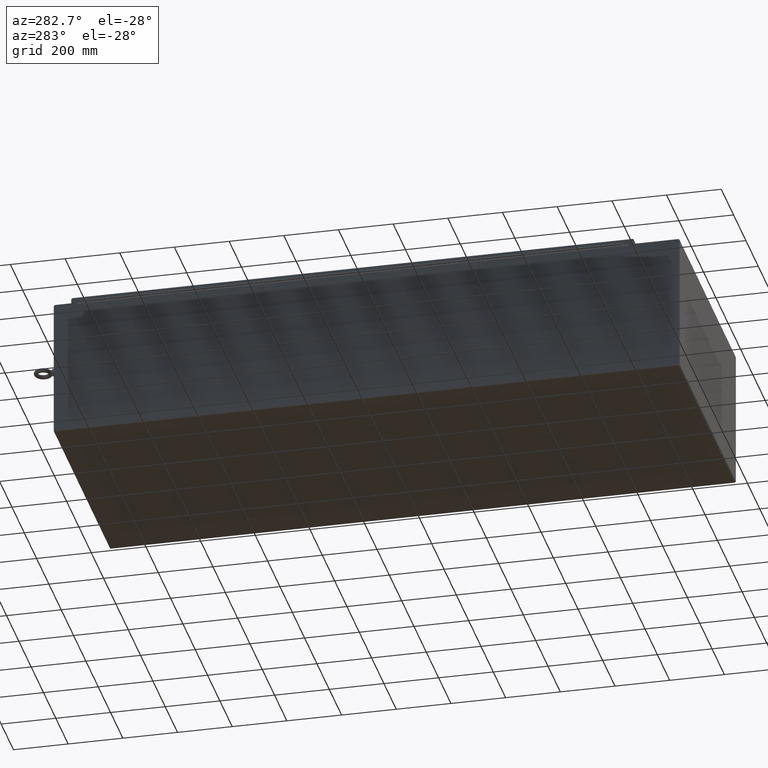
[diagram: clean part render]
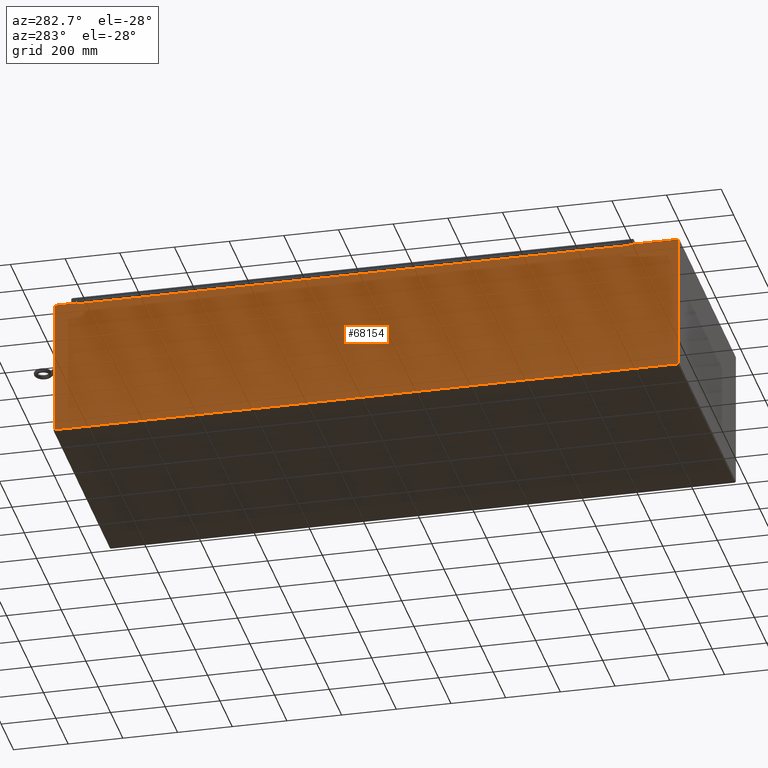
[diagram: same view with one face highlighted and labeled with its STEP entity id]
A machine part, auxiliary view. The second image highlights one B-rep face of the part: STEP entity #68154.
In plain terms, the highlighted planar face has unit normal (1, -0, 0).
Its self-contained STEP definition (entity closure, byte-faithful):
#9211=PLANE('',#71991);
#10396=FACE_OUTER_BOUND('',#13370,.T.);
#13370=EDGE_LOOP('',(#50585,#50586,#50587,#50588,#50589,#50590,#50591,#50592,
#50593,#50594,#50595,#50596));
#20052=LINE('',#96365,#25299);
#20058=LINE('',#96383,#25305);
#20061=LINE('',#96390,#25308);
#20065=LINE('',#96397,#25312);
#20067=LINE('',#96401,#25314);
#20068=LINE('',#96403,#25315);
#20069=LINE('',#96405,#25316);
#20070=LINE('',#96407,#25317);
#20071=LINE('',#96409,#25318);
#20072=LINE('',#96411,#25319);
#20073=LINE('',#96413,#25320);
#20074=LINE('',#96414,#25321);
#25299=VECTOR('',#78387,0.393700787401575);
#25305=VECTOR('',#78411,0.393700787401575);
#25308=VECTOR('',#78416,0.393700787401575);
#25312=VECTOR('',#78422,0.393700787401575);
#25314=VECTOR('',#78426,0.393700787401575);
#25315=VECTOR('',#78427,0.393700787401575);
#25316=VECTOR('',#78428,0.393700787401575);
#25317=VECTOR('',#78429,0.393700787401575);
#25318=VECTOR('',#78430,0.393700787401575);
#25319=VECTOR('',#78431,0.393700787401575);
#25320=VECTOR('',#78432,0.179625000000001);
#25321=VECTOR('',#78433,0.393700787401575);
#30540=VERTEX_POINT('',#96362);
#30541=VERTEX_POINT('',#96364);
#30544=VERTEX_POINT('',#96382);
#30546=VERTEX_POINT('',#96388);
#30547=VERTEX_POINT('',#96389);
#30550=VERTEX_POINT('',#96400);
#30551=VERTEX_POINT('',#96402);
#30552=VERTEX_POINT('',#96404);
#30553=VERTEX_POINT('',#96406);
#30554=VERTEX_POINT('',#96408);
#30555=VERTEX_POINT('',#96410);
#30556=VERTEX_POINT('',#96412);
#39804=EDGE_CURVE('',#30541,#30540,#20052,.T.);
#39813=EDGE_CURVE('',#30544,#30541,#20058,.T.);
#39816=EDGE_CURVE('',#30546,#30547,#20061,.T.);
#39820=EDGE_CURVE('',#30547,#30544,#20065,.T.);
#39822=EDGE_CURVE('',#30540,#30550,#20067,.T.);
#39823=EDGE_CURVE('',#30550,#30551,#20068,.T.);
#39824=EDGE_CURVE('',#30551,#30552,#20069,.T.);
#39825=EDGE_CURVE('',#30553,#30552,#20070,.T.);
#39826=EDGE_CURVE('',#30554,#30553,#20071,.T.);
#39827=EDGE_CURVE('',#30554,#30555,#20072,.T.);
#39828=EDGE_CURVE('',#30556,#30555,#20073,.T.);
#39829=EDGE_CURVE('',#30546,#30556,#20074,.T.);
#50585=ORIENTED_EDGE('',*,*,#39816,.T.);
#50586=ORIENTED_EDGE('',*,*,#39820,.T.);
#50587=ORIENTED_EDGE('',*,*,#39813,.T.);
#50588=ORIENTED_EDGE('',*,*,#39804,.T.);
#50589=ORIENTED_EDGE('',*,*,#39822,.T.);
#50590=ORIENTED_EDGE('',*,*,#39823,.T.);
#50591=ORIENTED_EDGE('',*,*,#39824,.T.);
#50592=ORIENTED_EDGE('',*,*,#39825,.F.);
#50593=ORIENTED_EDGE('',*,*,#39826,.F.);
#50594=ORIENTED_EDGE('',*,*,#39827,.T.);
#50595=ORIENTED_EDGE('',*,*,#39828,.F.);
#50596=ORIENTED_EDGE('',*,*,#39829,.F.);
#68154=ADVANCED_FACE('',(#10396),#9211,.F.);
#71991=AXIS2_PLACEMENT_3D('',#96399,#78424,#78425);
#78387=DIRECTION('',(6.20039750367297E-17,1.,-7.04859803593627E-17));
#78411=DIRECTION('',(-5.41233235300946E-15,0.,1.));
#78416=DIRECTION('',(5.41233235300946E-15,0.,-1.));
#78422=DIRECTION('',(6.20039750367293E-17,1.,0.));
#78424=DIRECTION('center_axis',(1.,-6.20039750367293E-17,5.41233235300946E-15));
#78425=DIRECTION('ref_axis',(5.41233235300946E-15,6.22221013937785E-17,
-1.));
#78426=DIRECTION('',(5.41233235300946E-15,0.,-1.));
#78427=DIRECTION('',(6.20039750367293E-17,1.,0.));
#78428=DIRECTION('',(-5.41233235300946E-15,0.,1.));
#78429=DIRECTION('',(-6.22221013937792E-17,-1.,6.22221013937788E-17));
#78430=DIRECTION('',(-5.39030285815812E-15,3.32800694390114E-31,1.));
#78431=DIRECTION('',(-6.20039750367293E-17,-1.,1.17576712584357E-33));
#78432=DIRECTION('',(5.32907051820075E-15,-6.22221013937792E-17,-1.));
#78433=DIRECTION('',(-6.22221013937792E-17,-1.,6.22221013937788E-17));
#96362=CARTESIAN_POINT('',(-18.0105000000001,41.6875,19.880375));
#96364=CARTESIAN_POINT('',(-18.0105000000001,-37.6875,19.880375));
#96365=CARTESIAN_POINT('',(-18.0105000000001,-18.84375,19.880375));
#96382=CARTESIAN_POINT('',(-18.0105000000001,-37.6875,19.880175));
#96383=CARTESIAN_POINT('',(-18.0105000000001,-37.6875,14.9359551774499));
#96388=CARTESIAN_POINT('',(-18.0105000000001,-37.6877,20.021));
#96389=CARTESIAN_POINT('',(-18.0105000000001,-37.6877,19.880175));
#96390=CARTESIAN_POINT('',(-18.0105000000001,-37.6877,15.0063676774499));
#96397=CARTESIAN_POINT('',(-18.0105000000001,-18.84385,19.880175));
#96399=CARTESIAN_POINT('Origin',(-18.0105000000001,-2.00752701285512E-15,
9.99173535489973));
#96400=CARTESIAN_POINT('',(-18.0105000000001,41.6875,19.880175));
#96401=CARTESIAN_POINT('',(-18.0105000000001,41.6875,15.0063676774499));
#96402=CARTESIAN_POINT('',(-18.0105000000001,41.6877,19.880175));
#96403=CARTESIAN_POINT('',(-18.0105000000001,20.84375,19.880175));
#96404=CARTESIAN_POINT('',(-18.0105000000001,41.6877,20.021));
#96405=CARTESIAN_POINT('',(-18.0105000000001,41.6877,14.9359551774499));
#96406=CARTESIAN_POINT('',(-18.0105000000001,44.9585,20.021));
#96407=CARTESIAN_POINT('',(-18.0105000000001,44.9585,20.021));
#96408=CARTESIAN_POINT('',(-18.0105,44.9585,0.244625));
#96409=CARTESIAN_POINT('',(-18.0105,44.9585,0.244624999999994));
#96410=CARTESIAN_POINT('',(-18.0105,-44.9585,0.244625));
#96411=CARTESIAN_POINT('',(-18.0105,-9.96160054757437E-16,0.244625000000002));
#96412=CARTESIAN_POINT('',(-18.0105000000001,-44.9585,20.021));
#96413=CARTESIAN_POINT('',(-18.0105,-44.9585,-0.319683580401069));
#96414=CARTESIAN_POINT('',(-18.0105000000001,44.9585,20.021));